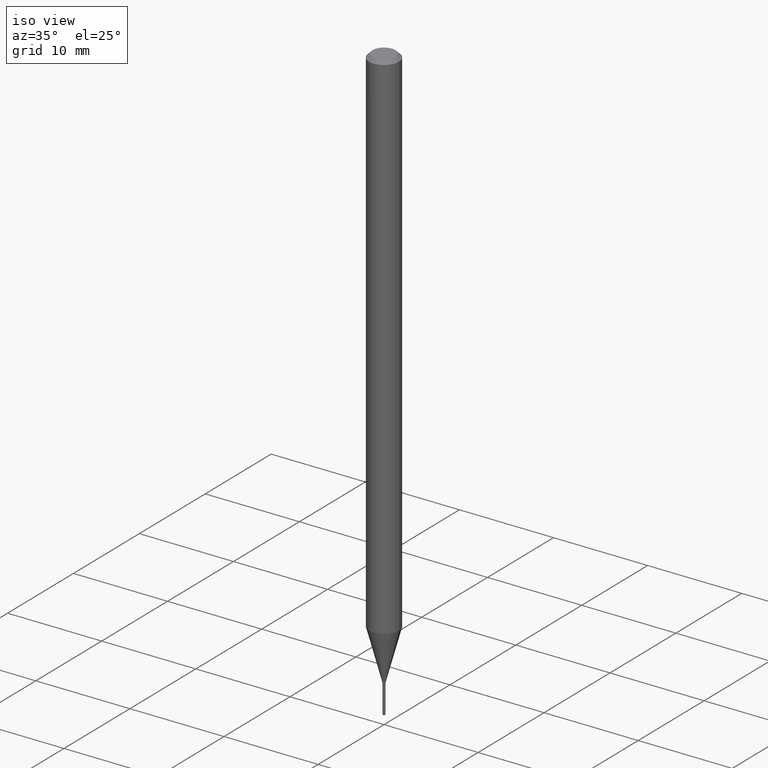
[diagram: clean part render]
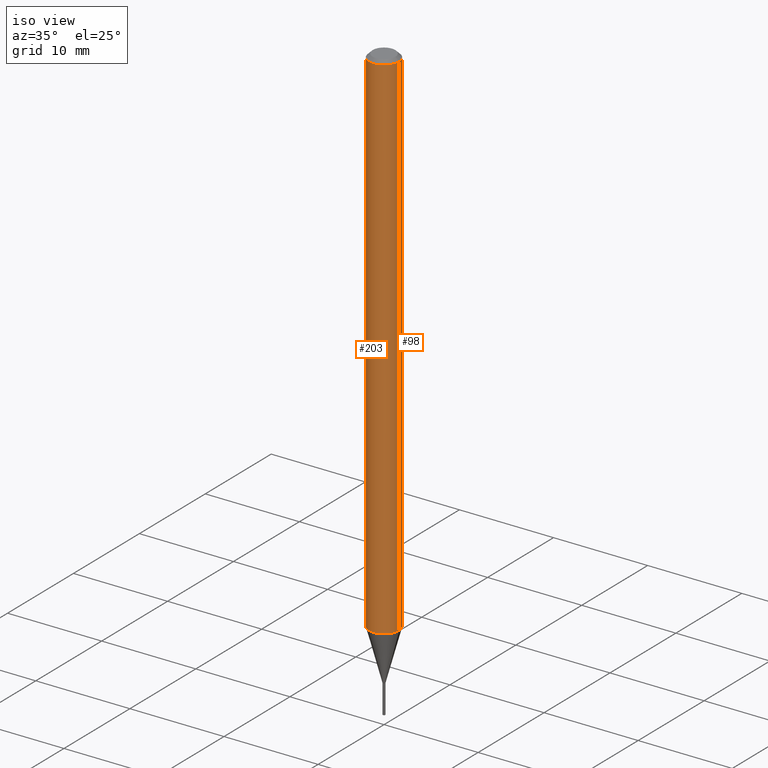
[diagram: same view with one multi-face feature highlighted, each face labeled with its STEP entity id]
A machine part, iso view. The highlighted faces form ONE feature: a constant-radius fillet chain: 2 tangent blend faces with common blend radius 1.5875 mm. The faces share edges in the B-rep.
Their STEP definitions:
[1] entity #203 (Cylinder):
#2 = CARTESIAN_POINT ( 'NONE',  ( -0.06250000000000000000, 4.440892098500626162E-16, -3.074334431409316114E-30 ) ) ;
#24 = DIRECTION ( 'NONE',  ( 1.000000000000000000, -6.982962677686266711E-15, 4.876176775795935793E-29 ) ) ;
#33 = AXIS2_PLACEMENT_3D ( 'NONE', #314, #162, #136 ) ;
#34 = VECTOR ( 'NONE', #325, 39.37007874015748143 ) ;
#35 = CARTESIAN_POINT ( 'NONE',  ( 0.06250000000000000000, -4.888073874380388472E-16, -0.01499999999999999944 ) ) ;
#102 = EDGE_CURVE ( 'NONE', #292, #444, #305, .T. ) ;
#103 = CARTESIAN_POINT ( 'NONE',  ( 0.06250000000000000000, -4.364351673553916694E-16, 3.047610484872459871E-30 ) ) ;
#107 = LINE ( 'NONE', #103, #34 ) ;
#108 = ORIENTED_EDGE ( 'NONE', *, *, #102, .T. ) ;
#129 = DIRECTION ( 'NONE',  ( -2.445468806185136597E-29, 3.491481338843145583E-15, 1.000000000000000000 ) ) ;
#136 = DIRECTION ( 'NONE',  ( 1.000000000000000000, -6.982962677686262766E-15, 0.000000000000000000 ) ) ;
#162 = DIRECTION ( 'NONE',  ( -2.445468806185136597E-29, 3.491481338843145583E-15, 1.000000000000000000 ) ) ;
#176 = CARTESIAN_POINT ( 'NONE',  ( -0.06250000000000000000, -3.362336103095166400E-15, -0.01499999999999999944 ) ) ;
#180 = ORIENTED_EDGE ( 'NONE', *, *, #222, .T. ) ;
#181 = CARTESIAN_POINT ( 'NONE',  ( 0.06249999999999999306, -7.996913573163202227E-15, -2.165407078564788090 ) ) ;
#202 = ORIENTED_EDGE ( 'NONE', *, *, #345, .F. ) ;
#203 = ADVANCED_FACE ( 'NONE', ( #341 ), #308, .T. ) ;
#207 = EDGE_CURVE ( 'NONE', #368, #410, #443, .T. ) ;
#213 = EDGE_LOOP ( 'NONE', ( #202, #108, #180, #327 ) ) ;
#219 = AXIS2_PLACEMENT_3D ( 'NONE', #460, #129, #275 ) ;
#222 = EDGE_CURVE ( 'NONE', #444, #410, #107, .T. ) ;
#256 = LINE ( 'NONE', #2, #353 ) ;
#275 = DIRECTION ( 'NONE',  ( 1.000000000000000000, -6.982962677686266711E-15, 0.000000000000000000 ) ) ;
#284 = CARTESIAN_POINT ( 'NONE',  ( -0.06249999999999999306, -7.116389195957747942E-15, -2.165407078564788090 ) ) ;
#292 = VERTEX_POINT ( 'NONE', #284 ) ;
#305 = CIRCLE ( 'NONE', #33, 0.06250000000000000000 ) ;
#308 = CYLINDRICAL_SURFACE ( 'NONE', #349, 0.06250000000000000000 ) ;
#314 = CARTESIAN_POINT ( 'NONE',  ( 5.295435463322675886E-29, -7.560478405807810558E-15, -2.165407078564788090 ) ) ;
#325 = DIRECTION ( 'NONE',  ( -2.445468806185136877E-29, 3.491481338843145188E-15, 1.000000000000000000 ) ) ;
#327 = ORIENTED_EDGE ( 'NONE', *, *, #207, .F. ) ;
#341 = FACE_OUTER_BOUND ( 'NONE', #213, .T. ) ;
#344 = DIRECTION ( 'NONE',  ( -2.445468806185136597E-29, 3.491481338843145583E-15, 1.000000000000000000 ) ) ;
#345 = EDGE_CURVE ( 'NONE', #292, #368, #256, .T. ) ;
#349 = AXIS2_PLACEMENT_3D ( 'NONE', #457, #344, #24 ) ;
#352 = DIRECTION ( 'NONE',  ( -2.445468806185136877E-29, 3.491481338843145188E-15, 1.000000000000000000 ) ) ;
#353 = VECTOR ( 'NONE', #352, 39.37007874015748143 ) ;
#368 = VERTEX_POINT ( 'NONE', #176 ) ;
#410 = VERTEX_POINT ( 'NONE', #35 ) ;
#443 = CIRCLE ( 'NONE', #219, 0.06250000000000000000 ) ;
#444 = VERTEX_POINT ( 'NONE', #181 ) ;
#457 = CARTESIAN_POINT ( 'NONE',  ( 0.000000000000000000, 0.000000000000000000, 0.000000000000000000 ) ) ;
#460 = CARTESIAN_POINT ( 'NONE',  ( 3.668203209277705088E-31, -5.237222008264718399E-17, -0.01499999999999999944 ) ) ;
[2] entity #98 (Cylinder):
#2 = CARTESIAN_POINT ( 'NONE',  ( -0.06250000000000000000, 4.440892098500626162E-16, -3.074334431409316114E-30 ) ) ;
#7 = DIRECTION ( 'NONE',  ( -2.445468806185136597E-29, 3.491481338843145583E-15, 1.000000000000000000 ) ) ;
#18 = ORIENTED_EDGE ( 'NONE', *, *, #425, .F. ) ;
#34 = VECTOR ( 'NONE', #325, 39.37007874015748143 ) ;
#35 = CARTESIAN_POINT ( 'NONE',  ( 0.06250000000000000000, -4.888073874380388472E-16, -0.01499999999999999944 ) ) ;
#62 = DIRECTION ( 'NONE',  ( 1.000000000000000000, -6.982962677686266711E-15, 4.876176775795935793E-29 ) ) ;
#69 = ORIENTED_EDGE ( 'NONE', *, *, #303, .T. ) ;
#73 = CARTESIAN_POINT ( 'NONE',  ( 5.295435463322675886E-29, -7.560478405807810558E-15, -2.165407078564788090 ) ) ;
#81 = EDGE_LOOP ( 'NONE', ( #69, #420, #18, #295 ) ) ;
#98 = ADVANCED_FACE ( 'NONE', ( #347 ), #134, .T. ) ;
#103 = CARTESIAN_POINT ( 'NONE',  ( 0.06250000000000000000, -4.364351673553916694E-16, 3.047610484872459871E-30 ) ) ;
#107 = LINE ( 'NONE', #103, #34 ) ;
#134 = CYLINDRICAL_SURFACE ( 'NONE', #236, 0.06250000000000000000 ) ;
#137 = CIRCLE ( 'NONE', #339, 0.06250000000000000000 ) ;
#140 = DIRECTION ( 'NONE',  ( -2.445468806185136597E-29, 3.491481338843145583E-15, 1.000000000000000000 ) ) ;
#176 = CARTESIAN_POINT ( 'NONE',  ( -0.06250000000000000000, -3.362336103095166400E-15, -0.01499999999999999944 ) ) ;
#181 = CARTESIAN_POINT ( 'NONE',  ( 0.06249999999999999306, -7.996913573163202227E-15, -2.165407078564788090 ) ) ;
#222 = EDGE_CURVE ( 'NONE', #444, #410, #107, .T. ) ;
#236 = AXIS2_PLACEMENT_3D ( 'NONE', #415, #271, #62 ) ;
#256 = LINE ( 'NONE', #2, #353 ) ;
#271 = DIRECTION ( 'NONE',  ( -2.445468806185136597E-29, 3.491481338843145583E-15, 1.000000000000000000 ) ) ;
#284 = CARTESIAN_POINT ( 'NONE',  ( -0.06249999999999999306, -7.116389195957747942E-15, -2.165407078564788090 ) ) ;
#291 = DIRECTION ( 'NONE',  ( 1.000000000000000000, -6.982962677686262766E-15, 0.000000000000000000 ) ) ;
#292 = VERTEX_POINT ( 'NONE', #284 ) ;
#295 = ORIENTED_EDGE ( 'NONE', *, *, #222, .F. ) ;
#303 = EDGE_CURVE ( 'NONE', #444, #292, #313, .T. ) ;
#313 = CIRCLE ( 'NONE', #326, 0.06250000000000000000 ) ;
#325 = DIRECTION ( 'NONE',  ( -2.445468806185136877E-29, 3.491481338843145188E-15, 1.000000000000000000 ) ) ;
#326 = AXIS2_PLACEMENT_3D ( 'NONE', #73, #140, #291 ) ;
#328 = CARTESIAN_POINT ( 'NONE',  ( 3.668203209277705088E-31, -5.237222008264718399E-17, -0.01499999999999999944 ) ) ;
#339 = AXIS2_PLACEMENT_3D ( 'NONE', #328, #7, #406 ) ;
#345 = EDGE_CURVE ( 'NONE', #292, #368, #256, .T. ) ;
#347 = FACE_OUTER_BOUND ( 'NONE', #81, .T. ) ;
#352 = DIRECTION ( 'NONE',  ( -2.445468806185136877E-29, 3.491481338843145188E-15, 1.000000000000000000 ) ) ;
#353 = VECTOR ( 'NONE', #352, 39.37007874015748143 ) ;
#368 = VERTEX_POINT ( 'NONE', #176 ) ;
#406 = DIRECTION ( 'NONE',  ( 1.000000000000000000, -6.982962677686266711E-15, 0.000000000000000000 ) ) ;
#410 = VERTEX_POINT ( 'NONE', #35 ) ;
#415 = CARTESIAN_POINT ( 'NONE',  ( 0.000000000000000000, 0.000000000000000000, 0.000000000000000000 ) ) ;
#420 = ORIENTED_EDGE ( 'NONE', *, *, #345, .T. ) ;
#425 = EDGE_CURVE ( 'NONE', #410, #368, #137, .T. ) ;
#444 = VERTEX_POINT ( 'NONE', #181 ) ;